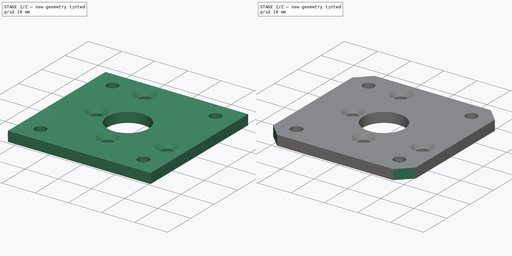
[diagram: build sequence overview — one tinted view per stage of 2, left to right]
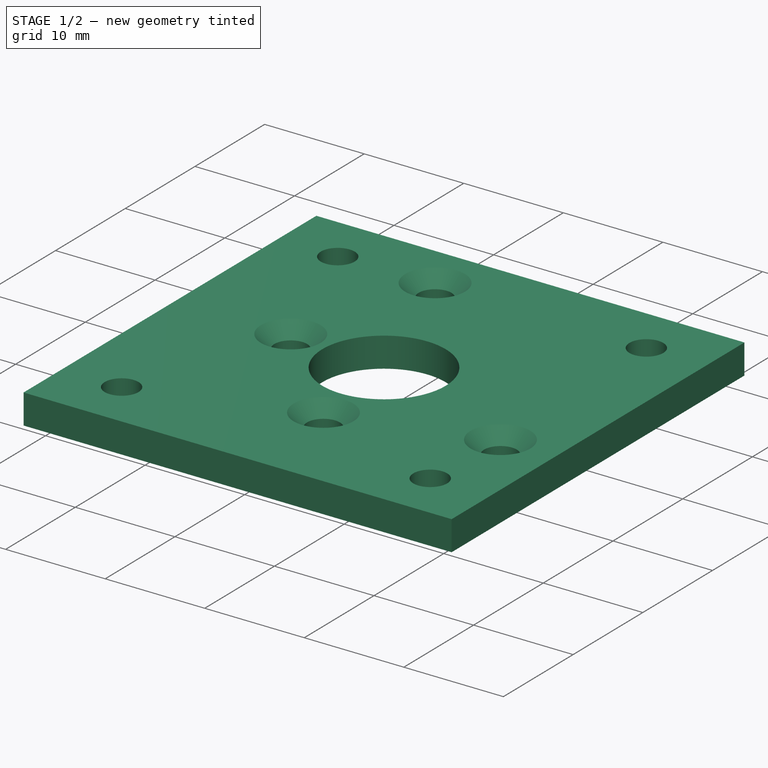
[diagram: stage 1 of 2 — iso view after this stage's code; geometry added in this stage tinted green]
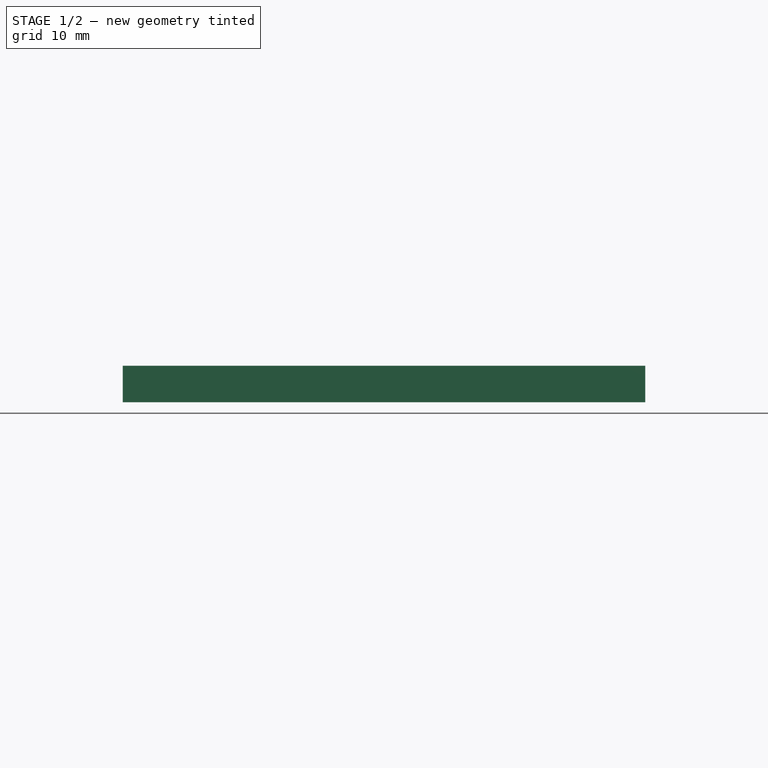
[diagram: stage 1 of 2 — front view after this stage's code; geometry added in this stage tinted green]
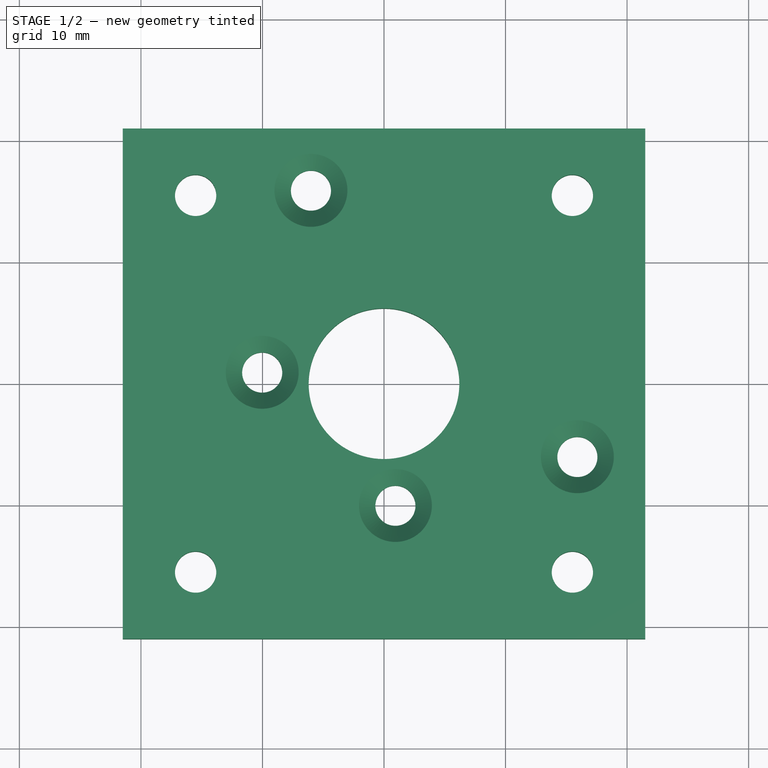
[diagram: stage 1 of 2 — top view after this stage's code; geometry added in this stage tinted green]
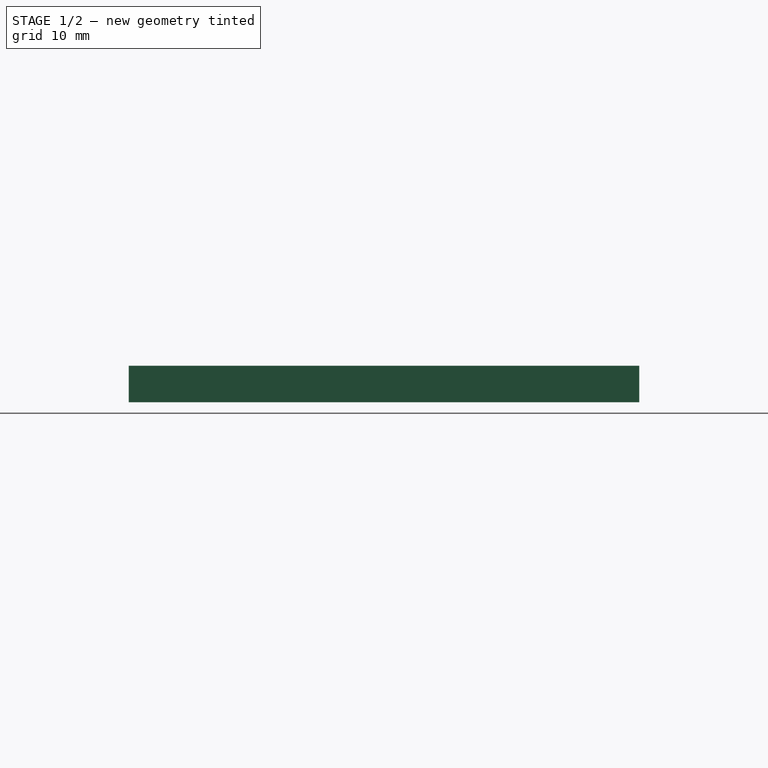
[diagram: stage 1 of 2 — right view after this stage's code; geometry added in this stage tinted green]
FCSTD DOCUMENT  (FreeCAD 0.17R12560 (Git))
Label: C1070_dc_motor_adapter
License: All rights reserved
LicenseURL: http://en.wikipedia.org/wiki/All_rights_reserved
objects: Sketcher::SketchObject×3, PartDesign::Pad×1, PartDesign::Hole×1, PartDesign::Pocket×1, PartDesign::Chamfer×1, PartDesign::Body×1
note: 11 computed .brp shape members not serialized (recipe doc carries the construction recipe); baked Part::Feature solids carry a one-line shape summary decoded from their .brp

FEATURE [Sketcher::SketchObject] Sketch  label="Sketch-main"
  MapMode = 5
  sketch-geometry (9):
    g0: LineSegment StartX=-21.5 StartY=21 StartZ=0 EndX=21.5 EndY=21 EndZ=0
    g1: LineSegment StartX=21.5 StartY=21 StartZ=0 EndX=21.5 EndY=-21 EndZ=0
    g2: LineSegment StartX=21.5 StartY=-21 StartZ=0 EndX=-21.5 EndY=-21 EndZ=0
    g3: LineSegment StartX=-21.5 StartY=-21 StartZ=0 EndX=-21.5 EndY=21 EndZ=0
    g4: Circle CenterX=0 CenterY=0 CenterZ=0 NormalX=0 NormalY=0 NormalZ=1 AngleXU=0 Radius=6.2
    g5: Circle CenterX=-15.5 CenterY=15.5 CenterZ=0 NormalX=0 NormalY=0 NormalZ=1 AngleXU=0 Radius=1.7
    g6: Circle CenterX=15.5 CenterY=15.5 CenterZ=0 NormalX=0 NormalY=0 NormalZ=1 AngleXU=0 Radius=1.7
    g7: Circle CenterX=-15.5 CenterY=-15.5 CenterZ=0 NormalX=0 NormalY=0 NormalZ=1 AngleXU=0 Radius=1.7
    g8: Circle CenterX=15.5 CenterY=-15.5 CenterZ=0 NormalX=0 NormalY=0 NormalZ=1 AngleXU=0 Radius=1.7
  constraints (23):
    c: Coincident(g0,g1)
    c: Coincident(g1,g2)
    c: Coincident(g2,g3)
    c: Coincident(g3,g0)
    c: Horizontal(g0)
    c: Horizontal(g2)
    c: Vertical(g1)
    c: Vertical(g3)
    c: Symmetric(g0,g0,g-2)
    c: Symmetric(g0,g2,g-1)
    c: DistanceY(g4,g0) = 21
    c: DistanceX(g2) = -43
    c: Radius(g4) = 6.2
    c: Symmetric(g5,g6,g-2)
    c: DistanceY(g5,g7) = -31
    c: DistanceX(g5,g6) = 31
    c: Equal(g6,g5)
    c: Equal(g5,g7)
    c: Equal(g7,g8)
    c: Radius(g6) = 1.7
    c: Symmetric(g5,g7,g-1)
    c: Symmetric(g6,g8,g-1)
    c: Coincident(g4,g-1)
FEATURE [PartDesign::Pad] Pad
  Length = 3
  Length2 = 100
  Midplane = true
  Profile = -> Sketch
  Type = 0
FEATURE [Sketcher::SketchObject] Sketch002  label="Sketch-motor-holes"
  ExternalGeometry = -> [Pad]
  MapMode = 5
  Placement = pos=(0,0,1.5) rot=(0,0,1;0rad)
  Support = -> [Pad]
  sketch-geometry (8):
    g0: Circle [constr] CenterX=4.94975 CenterY=4.94975 CenterZ=0 NormalX=0 NormalY=0 NormalZ=1 AngleXU=0 Radius=18.4
    g1: LineSegment [constr] StartX=-8.06102 StartY=17.9605 StartZ=0 EndX=17.9605 EndY=-8.06102 EndZ=0
    g2: Circle [constr] CenterX=4.94975 CenterY=4.94975 CenterZ=0 NormalX=0 NormalY=0 NormalZ=1 AngleXU=0 Radius=15.5
    g3: Circle CenterX=15.9099 CenterY=-6.01041 CenterZ=0 NormalX=0 NormalY=0 NormalZ=1 AngleXU=0 Radius=1.6
    g4: Circle CenterX=0.938052 CenterY=-10.0221 CenterZ=0 NormalX=0 NormalY=0 NormalZ=1 AngleXU=0 Radius=1.6
    g5: Circle CenterX=-6.01041 CenterY=15.9099 CenterZ=0 NormalX=0 NormalY=0 NormalZ=1 AngleXU=0 Radius=1.6
    g6: LineSegment [constr] StartX=0 StartY=0 StartZ=0 EndX=4.94975 EndY=4.94975 EndZ=0
    g7: Circle CenterX=-10.0221 CenterY=0.938052 CenterZ=0 NormalX=0 NormalY=0 NormalZ=1 AngleXU=0 Radius=1.6
  constraints (23):
    c: Radius(g2) = 15.5
    c: Radius(g0) = 18.4
    c: Coincident(g6,g-1)
    c: Coincident(g0,g2)
    c: Coincident(g0,g6)
    c: Angle(g-1,g6) = 0.785398
    c: Distance(g6) = 7
    c: Perpendicular(g1,g6)
    c: PointOnObject(g4,g2)
    c: PointOnObject(g3,g2)
    c: PointOnObject(g5,g2)
    c: Equal(g5,g4)
    c: Equal(g4,g3)
    c: Radius(g4) = 1.6
    c: PointOnObject(g3,g1)
    c: PointOnObject(g5,g1)
    c: PointOnObject(g0,g1)
    c: PointOnObject(g1,g0)
    c: PointOnObject(g1,g0)
    c: PointOnObject(g7,g2)
    c: Equal(g7,g4)
    c: Symmetric(g7,g4,g6)
    c: Distance(g4,g3) = 15.5
FEATURE [PartDesign::Hole] Hole
  BaseFeature = -> Pad
  Depth = 25
  DepthType = 1
  Diameter = 3.3
  DrillPoint = 1
  DrillPointAngle = 118
  HoleCutCountersinkAngle = 90
  HoleCutDepth = 0
  HoleCutDiameter = 6
  HoleCutType = 2
  ModelActualThread = false
  Profile = -> Sketch002
  Tapered = false
  TaperedAngle = 90
  ThreadAngle = 0
  ThreadClass = 0
  ThreadCutOffInner = 0
  ThreadCutOffOuter = 0
  ThreadDirection = 0
  ThreadFit = 0
  ThreadPitch = 0
  ThreadSize = 3
  ThreadType = 1
  Threaded = false
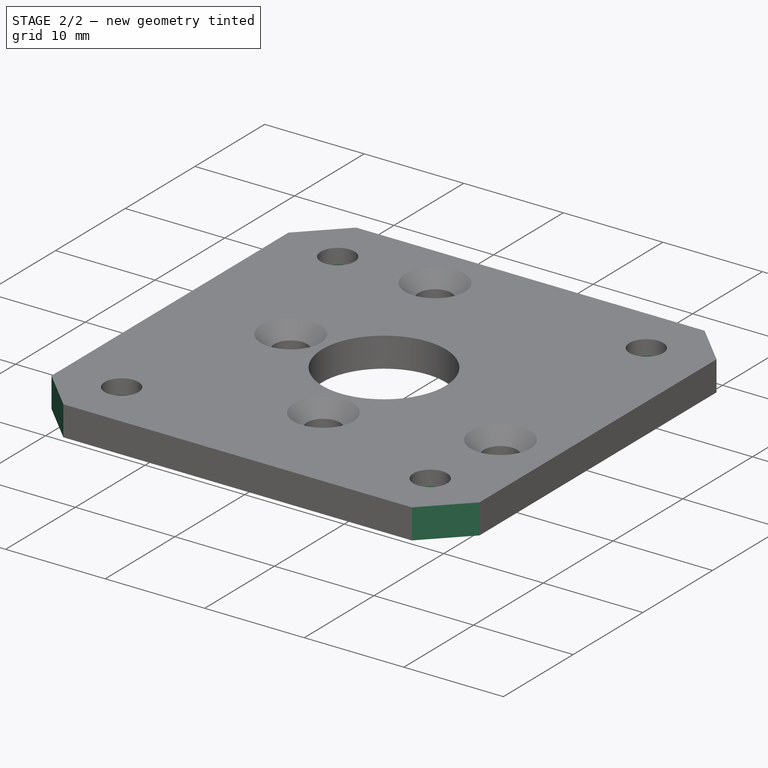
[diagram: stage 2 of 2 — iso view after this stage's code; geometry added in this stage tinted green]
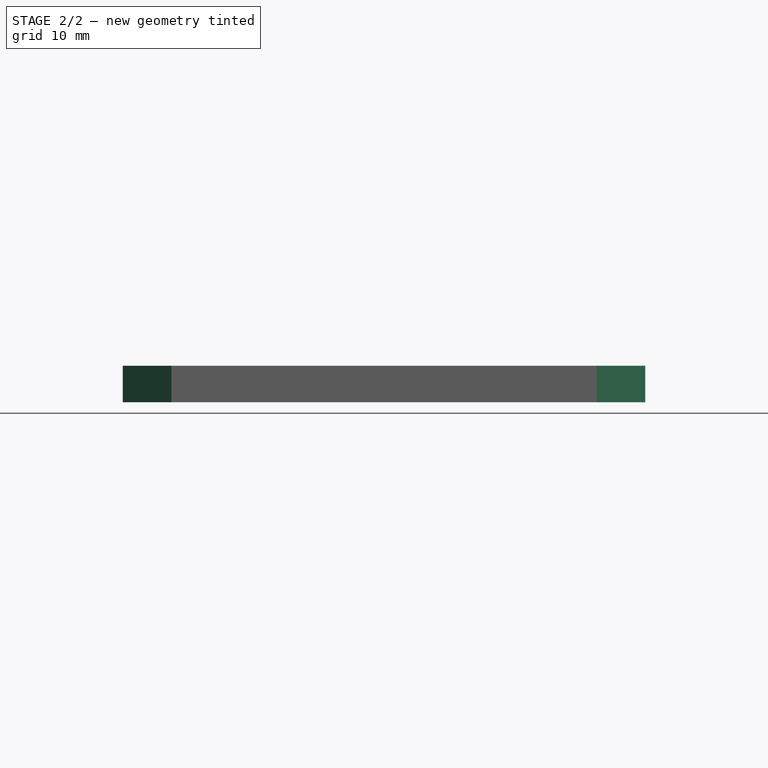
[diagram: stage 2 of 2 — front view after this stage's code; geometry added in this stage tinted green]
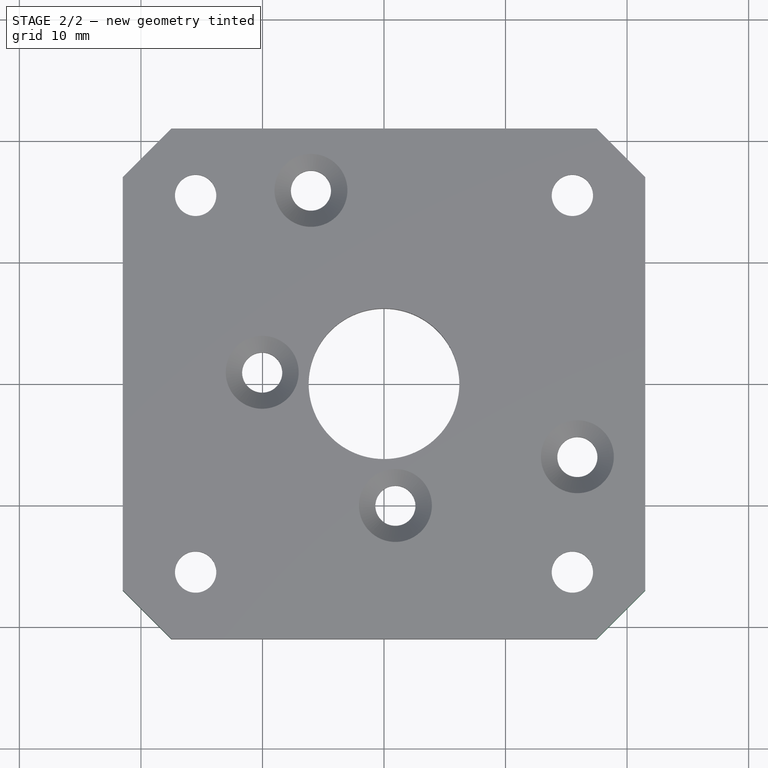
[diagram: stage 2 of 2 — top view after this stage's code; geometry added in this stage tinted green]
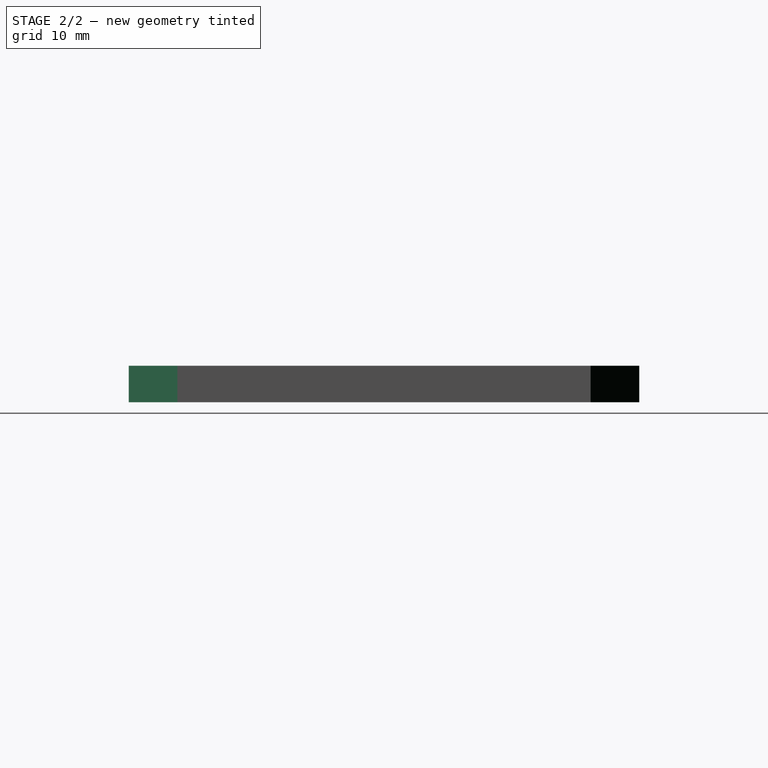
[diagram: stage 2 of 2 — right view after this stage's code; geometry added in this stage tinted green]
FEATURE [Sketcher::SketchObject] Sketch004
  ExternalGeometry = -> [Hole]
  MapMode = 5
  Placement = pos=(0,0,-1.5) rot=(1,0,0;3.14159rad)
  Support = -> [Hole]
  sketch-geometry (28):
    g0: LineSegment StartX=-13.8834 StartY=12.7 StartZ=0 EndX=-12.2668 EndY=15.5 EndZ=0
    g1: LineSegment StartX=-12.2668 StartY=15.5 StartZ=0 EndX=-13.8834 EndY=18.3 EndZ=0
    g2: LineSegment StartX=-13.8834 StartY=18.3 StartZ=0 EndX=-17.1166 EndY=18.3 EndZ=0
    g3: LineSegment StartX=-17.1166 StartY=18.3 StartZ=0 EndX=-18.7332 EndY=15.5 EndZ=0
    g4: LineSegment StartX=-18.7332 StartY=15.5 StartZ=0 EndX=-17.1166 EndY=12.7 EndZ=0
    g5: LineSegment StartX=-17.1166 StartY=12.7 StartZ=0 EndX=-13.8834 EndY=12.7 EndZ=0
    g6: Circle [constr] CenterX=-15.5 CenterY=15.5 CenterZ=0 NormalX=0 NormalY=0 NormalZ=1 AngleXU=0 Radius=3.23316
    g7: LineSegment StartX=13.8834 StartY=12.7 StartZ=0 EndX=17.1166 EndY=12.7 EndZ=0
    g8: LineSegment StartX=17.1166 StartY=12.7 StartZ=0 EndX=18.7332 EndY=15.5 EndZ=0
    g9: LineSegment StartX=18.7332 StartY=15.5 StartZ=0 EndX=17.1166 EndY=18.3 EndZ=0
    g10: LineSegment StartX=17.1166 StartY=18.3 StartZ=0 EndX=13.8834 EndY=18.3 EndZ=0
    g11: LineSegment StartX=13.8834 StartY=18.3 StartZ=0 EndX=12.2668 EndY=15.5 EndZ=0
    g12: LineSegment StartX=12.2668 StartY=15.5 StartZ=0 EndX=13.8834 EndY=12.7 EndZ=0
    g13: Circle [constr] CenterX=15.5 CenterY=15.5 CenterZ=0 NormalX=0 NormalY=0 NormalZ=1 AngleXU=0 Radius=3.23316
    g14: LineSegment StartX=17.1166 StartY=-12.7 StartZ=0 EndX=13.8834 EndY=-12.7 EndZ=0
    g15: LineSegment StartX=13.8834 StartY=-12.7 StartZ=0 EndX=12.2668 EndY=-15.5 EndZ=0
    g16: LineSegment StartX=12.2668 StartY=-15.5 StartZ=0 EndX=13.8834 EndY=-18.3 EndZ=0
    g17: LineSegment StartX=13.8834 StartY=-18.3 StartZ=0 EndX=17.1166 EndY=-18.3 EndZ=0
    g18: LineSegment StartX=17.1166 StartY=-18.3 StartZ=0 EndX=18.7332 EndY=-15.5 EndZ=0
    g19: LineSegment StartX=18.7332 StartY=-15.5 StartZ=0 EndX=17.1166 EndY=-12.7 EndZ=0
    g20: Circle [constr] CenterX=15.5 CenterY=-15.5 CenterZ=0 NormalX=0 NormalY=0 NormalZ=1 AngleXU=0 Radius=3.23316
    g21: LineSegment StartX=-13.8834 StartY=-12.7 StartZ=0 EndX=-17.1166 EndY=-12.7 EndZ=0
    g22: LineSegment StartX=-17.1166 StartY=-12.7 StartZ=0 EndX=-18.7332 EndY=-15.5 EndZ=0
    g23: LineSegment StartX=-18.7332 StartY=-15.5 StartZ=0 EndX=-17.1166 EndY=-18.3 EndZ=0
    g24: LineSegment StartX=-17.1166 StartY=-18.3 StartZ=0 EndX=-13.8834 EndY=-18.3 EndZ=0
    g25: LineSegment StartX=-13.8834 StartY=-18.3 StartZ=0 EndX=-12.2668 EndY=-15.5 EndZ=0
    g26: LineSegment StartX=-12.2668 StartY=-15.5 StartZ=0 EndX=-13.8834 EndY=-12.7 EndZ=0
    g27: Circle [constr] CenterX=-15.5 CenterY=-15.5 CenterZ=0 NormalX=0 NormalY=0 NormalZ=1 AngleXU=0 Radius=3.23316
  constraints (64):
    c: Coincident(g0,g1)
    c: Coincident(g1,g2)
    c: Coincident(g2,g3)
    c: Coincident(g3,g4)
    c: Coincident(g4,g5)
    c: Coincident(g5,g0)
    c: Equal(g0, g1-g5) x5
    c: PointOnObject(g0,g6)
    c: PointOnObject(g1,g6)
    c: PointOnObject(g2,g6)
    c: PointOnObject(g3,g6)
    c: PointOnObject(g4,g6)
    c: PointOnObject(g5,g6)
    c: Coincident(g6,g-3)
    c: Coincident(g7,g8)
    c: Coincident(g8,g9)
    c: Coincident(g9,g10)
    c: Coincident(g10,g11)
    c: Coincident(g11,g12)
    c: Coincident(g12,g7)
    c: Equal(g7, g8-g12) x5
    c: PointOnObject(g7,g13)
    c: PointOnObject(g8,g13)
    c: PointOnObject(g9,g13)
    c: PointOnObject(g10,g13)
    c: PointOnObject(g11,g13)
    c: PointOnObject(g12,g13)
    c: Coincident(g13,g-4)
    c: Coincident(g14,g15)
    c: Coincident(g15,g16)
    c: Coincident(g16,g17)
    c: Coincident(g17,g18)
    c: Coincident(g18,g19)
    c: Coincident(g19,g14)
    c: Equal(g14, g15-g19) x5
    c: PointOnObject(g14,g20)
    c: PointOnObject(g15,g20)
    c: PointOnObject(g16,g20)
    c: PointOnObject(g17,g20)
    c: PointOnObject(g18,g20)
    c: PointOnObject(g19,g20)
    c: Coincident(g20,g-5)
    c: Coincident(g21,g22)
    c: Coincident(g22,g23)
    c: Coincident(g23,g24)
    c: Coincident(g24,g25)
    c: Coincident(g25,g26)
    c: Coincident(g26,g21)
    c: Equal(g21, g22-g26) x5
    c: PointOnObject(g21,g27)
    c: PointOnObject(g22,g27)
    c: PointOnObject(g23,g27)
    c: PointOnObject(g24,g27)
    c: PointOnObject(g25,g27)
    c: PointOnObject(g26,g27)
    c: Coincident(g27,g-6)
    c: Horizontal(g21)
    c: Horizontal(g14)
    c: Horizontal(g10)
    c: Horizontal(g2)
    c: Equal(g6,g27)
    c: Equal(g27,g20)
    c: Equal(g20,g13)
    c: DistanceY(g7,g9) = 5.6
FEATURE [PartDesign::Pocket] Pocket
  BaseFeature = -> Hole
  Length = 1.5
  Profile = -> Sketch004
  Type = 0
FEATURE [PartDesign::Chamfer] Chamfer
  Base = -> Pocket [Edge8,Edge2,Edge1,Edge5]
  BaseFeature = -> Pocket
  Size = 4
FEATURE [PartDesign::Body] Body
  Group = -> [Sketch,Sketch002,Pad,Hole,Sketch004,Pocket,Chamfer]
  Origin = -> Origin
  Tip = -> Chamfer
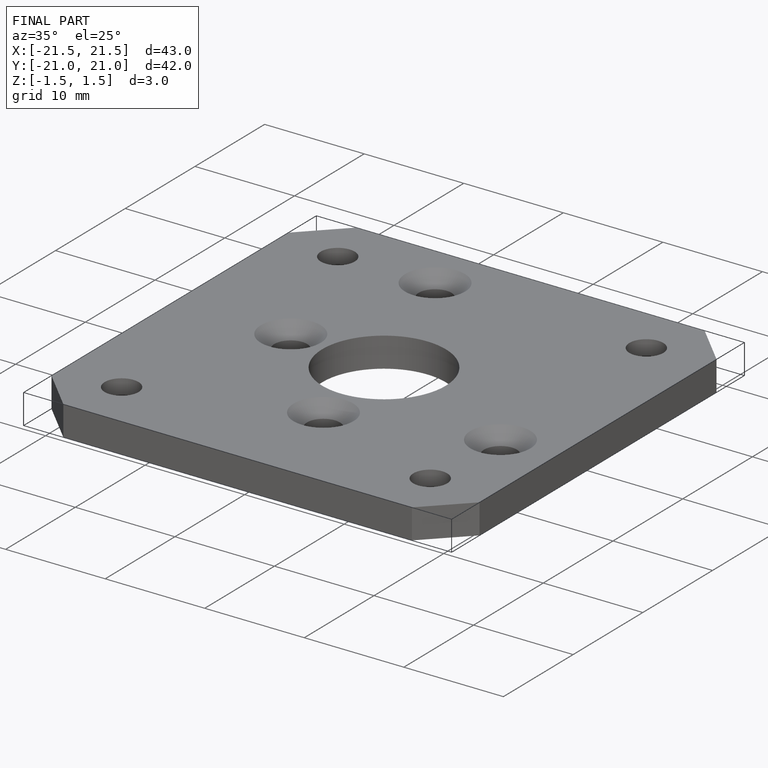
[diagram: finished part — iso view with bounding-box wireframe]
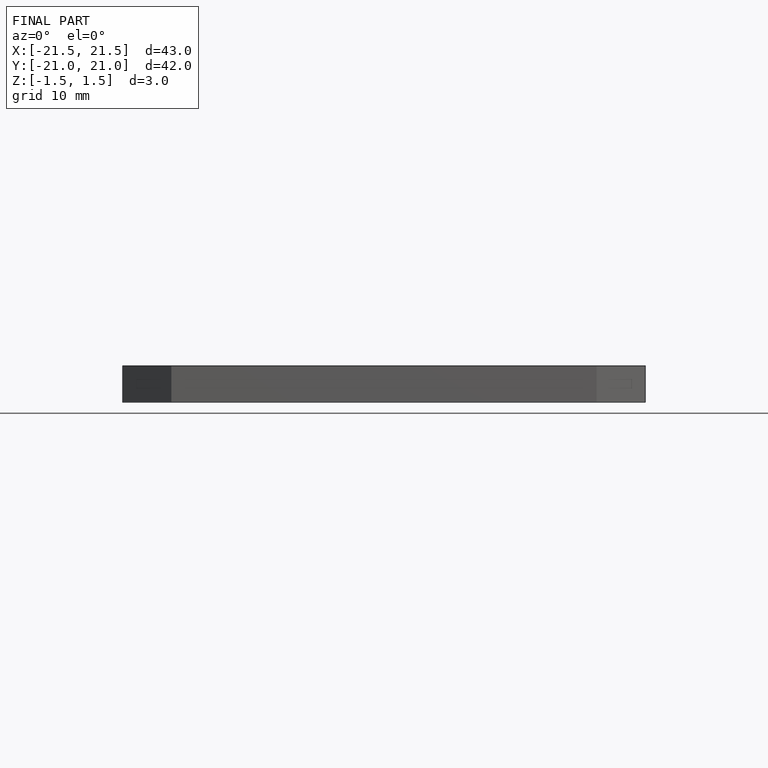
[diagram: finished part — front view with bounding-box wireframe]
